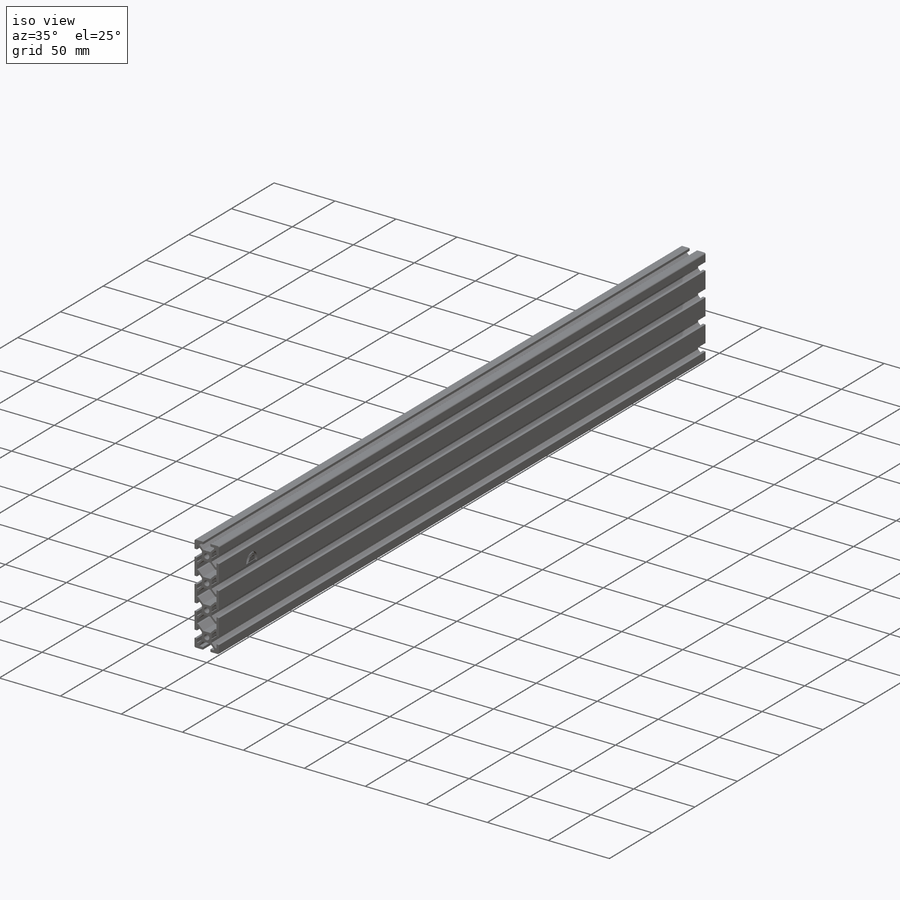
[diagram: iso view]
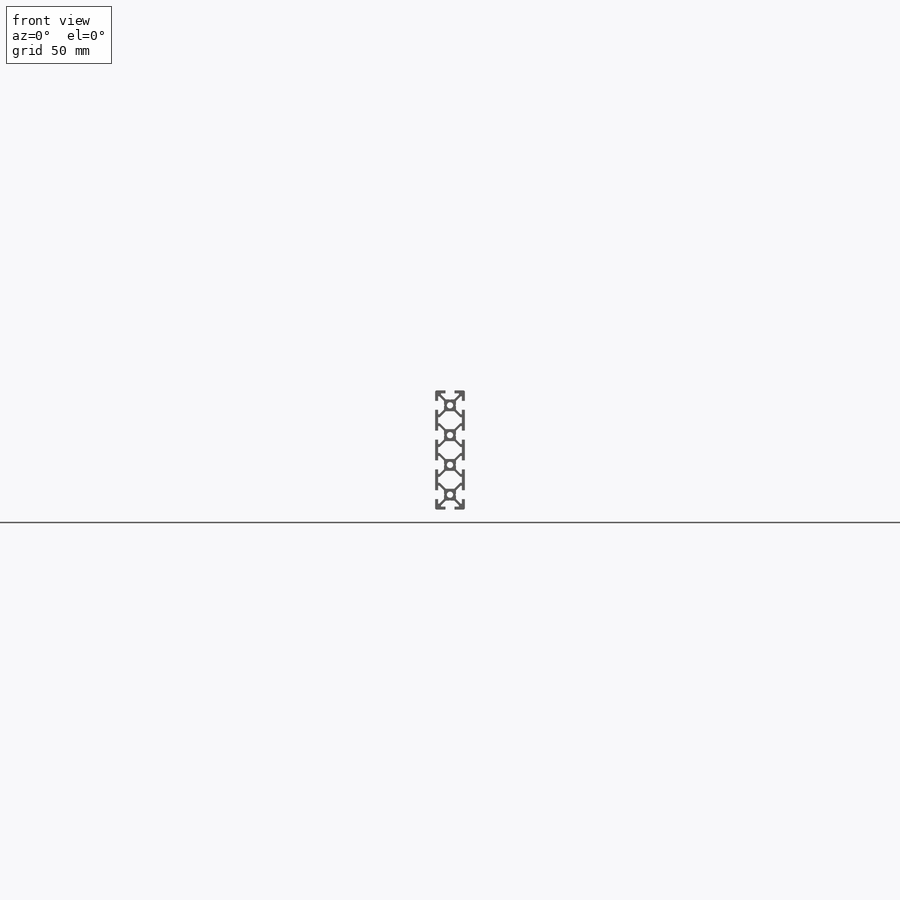
[diagram: front view]
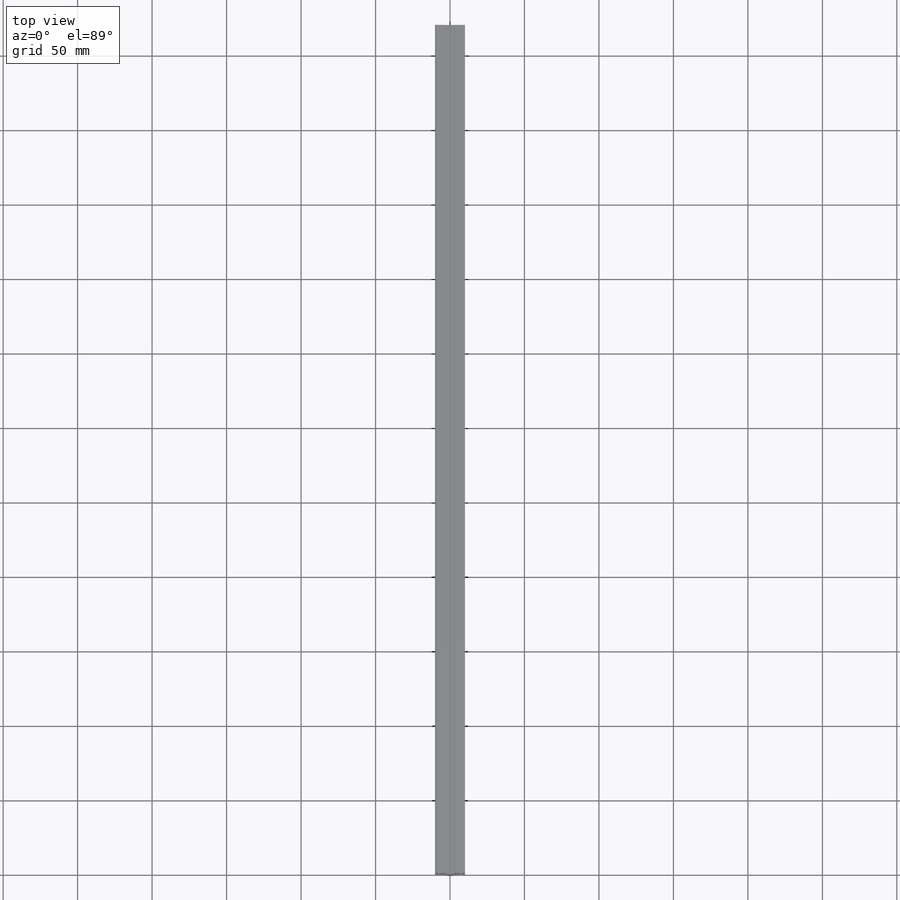
[diagram: top view]
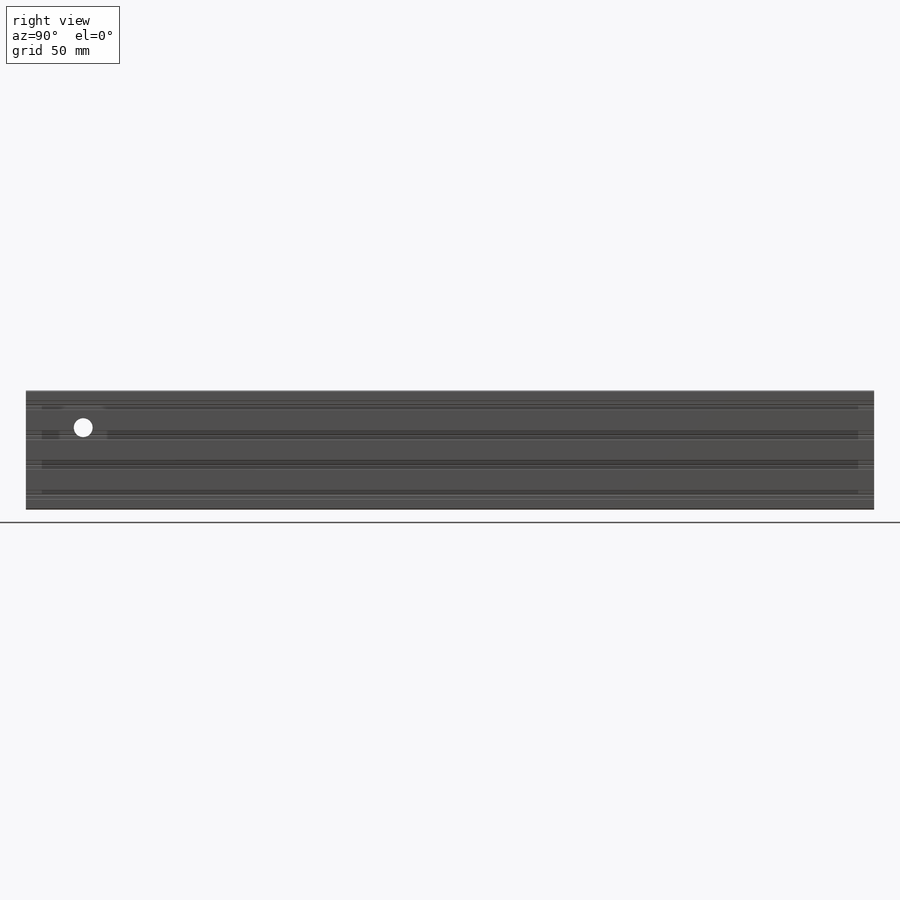
[diagram: right view]
SOLIDWORKS PART (.sldprt)
format: sldprt  version: not decoded by parser v0  size: 2,187,776 bytes
history: native  units: mm
features: sketch x6, cut_extrude x5, material x1, plane x1, extrude x1 (+13 scaffold rows collapsed)
feature tree (27):
  scaffold x13  (default folders/planes/origin — collapsed)
  material  "6063-T5"
  plane  "Plane1"
  sketch  "Sketch1"
  extrude  "Boss-Extrude1"  Depth=569.5mm
  sketch  "Sketch2"  dims[c1.D1=~2.221715deg c1.D2=~1.518258deg c1.D3=~0.727656deg c2.D1=~2.205888deg c2.D2=~1.432394deg]
  cut_extrude  "Cut-Extrude1"  [1 undecoded]
  sketch  "Sketch3"  dims[c1.D1=~0.788145deg c1.D2=~0.788145deg c1.D3=~0.727656deg c2.D1=~1.432394deg c2.D2=~2.205888deg]
  cut_extrude  "Cut-Extrude2"  [1 undecoded]
  sketch  "Sketch4"  dims[c1.D1=~0.727656deg c1.D2=~0.727656deg c1.D3=~0.727656deg c1.D4=~0.286479deg c1.D5=~0.286479deg c1.D6=~0.286479deg c1.D8=~0.286479deg c2.D2=~2.57831deg c2.D3=~2.205888deg c2.D5=~0.572958deg c2.D6=~12.89155deg c2.D8=~1.145916deg c2.D7=4.0]
  cut_extrude  "Cut-Extrude3"  [1 undecoded]
  sketch  "Sketch5"  dims[c1.D1=~0.286479deg c1.D2=~0.286479deg c1.D3=~0.286479deg c1.D5=~0.286479deg c1.D7=~0.286479deg c2.D2=~12.89155deg c2.D3=~0.572958deg c2.D5=~1.145916deg c2.D7=~1.145916deg c2.D4=4.0 c2.D6=2.0]
  cut_extrude  "Cut-Extrude4"  [1 undecoded]
  sketch  "Sketch6"  dims[c1.D1=~0.286479deg c1.D2=~0.286479deg c1.D3=~0.286479deg c1.D5=~0.286479deg c2.D2=~0.572958deg c2.D3=~12.89155deg c2.D5=~1.145916deg c2.D4=4.0]
  cut_extrude  "Cut-Extrude5"  [1 undecoded]
decode coverage: 6 of 12 modeling features carry decoded parameters
note: ~ marks probable driven/reference dimensions
note: 5 parameter values undecoded
summary: no parameter record found for 5 features
note: suppression state not decoded; provenance and decode notes live in map.json
